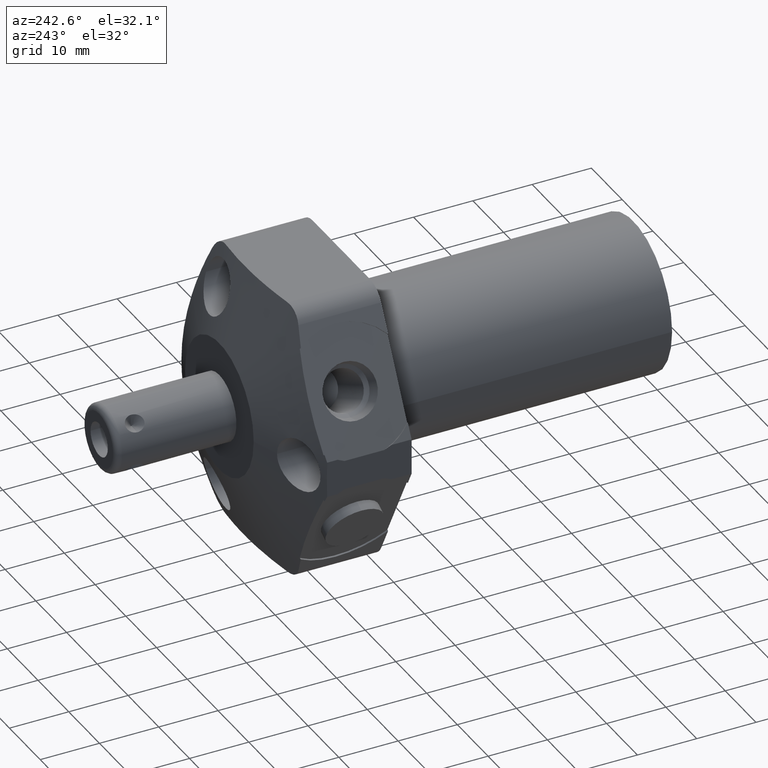
[diagram: clean part render]
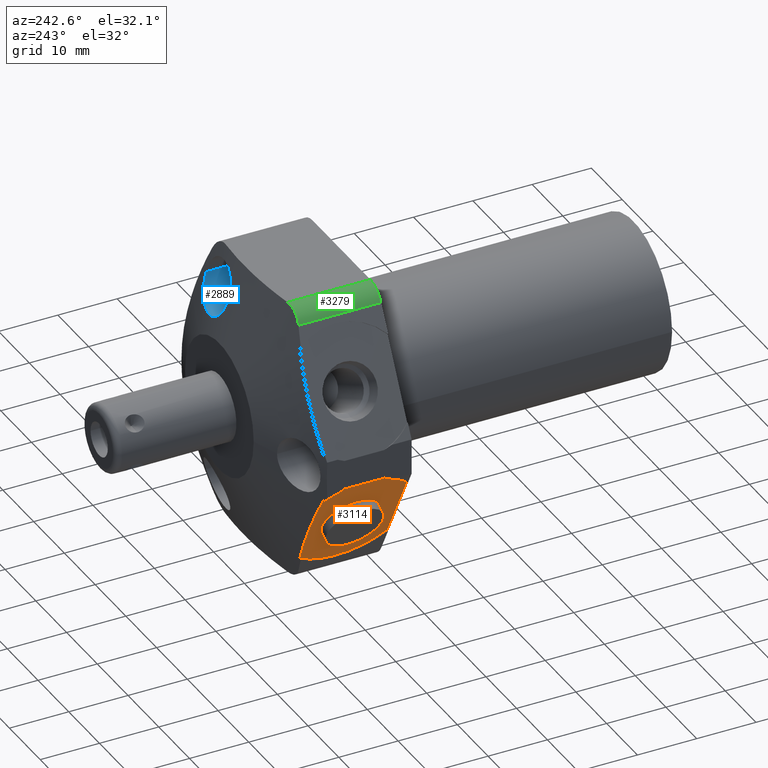
[diagram: same view with three faces highlighted in distinct colors, each labeled with its STEP entity id]
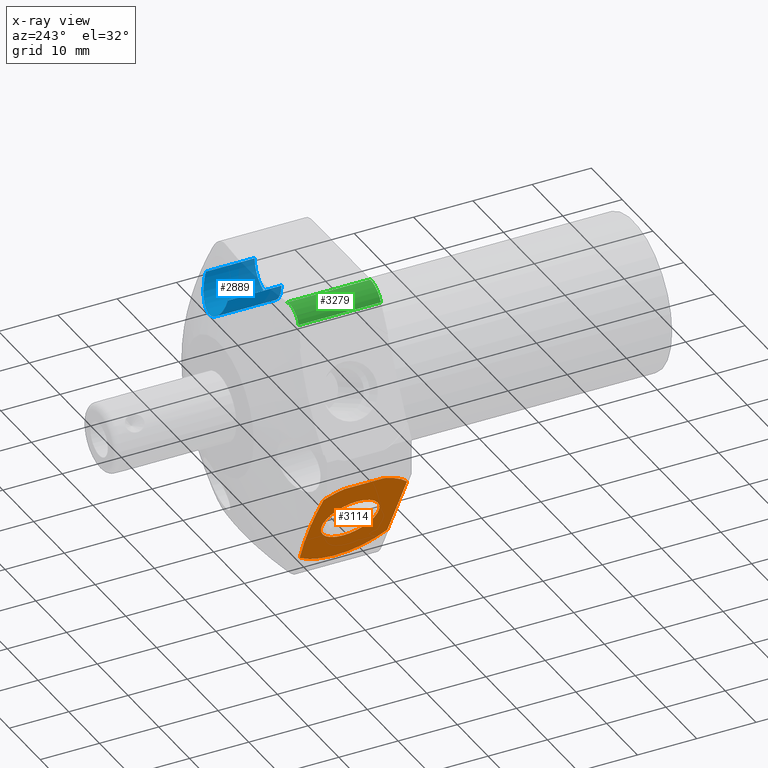
[diagram: x-ray of the same camera — body ghosted, the three highlighted faces saturated]
A machine part, auxiliary view with three faces highlighted in distinct colors.
The next image is the same camera in x-ray (body ghosted, the three faces saturated) — at least one of them is partly hidden behind the body in this view.
Their STEP definitions:

[orange] entity #3114 — the highlighted planar face has unit normal (0.8829, 0, 0.4695).
#486=DIRECTION('',(4.694715627859E-1,0.E0,-8.829475928589E-1));
#487=VECTOR('',#486,5.373537010201E-1);
#488=CARTESIAN_POINT('',(-9.587557209593E-1,0.E0,-2.054841052923E-1));
#489=LINE('',#488,#487);
#958=CARTESIAN_POINT('',(-1.016E0,1.804109471908E-1,-9.782327471084E-2));
#966=DIRECTION('',(0.E0,-1.E0,0.E0));
#967=VECTOR('',#966,2.651781056185E-1);
#968=CARTESIAN_POINT('',(-1.016E0,4.455890528092E-1,-9.782327471084E-2));
#969=LINE('',#968,#967);
#976=CARTESIAN_POINT('',(-1.016E0,4.455890528092E-1,-9.782327471084E-2));
#1049=CARTESIAN_POINT('',(-8.326195800660E-1,3.13E-1,-4.427116837071E-1));
#1050=DIRECTION('',(-8.829475928589E-1,0.E0,-4.694715627859E-1));
#1051=DIRECTION('',(3.680814457022E-1,6.207184763267E-1,-6.922605163350E-1));
#1052=AXIS2_PLACEMENT_3D('',#1049,#1050,#1051);
#1065=CARTESIAN_POINT('',(-9.844531764181E-1,5.690463714848E-1,
-1.571542207189E-1));
#1066=CARTESIAN_POINT('',(-9.642555672210E-1,5.735812521305E-1,
-1.951403988726E-1));
#1067=CARTESIAN_POINT('',(-9.238256986409E-1,5.810341395679E-1,
-2.711779227018E-1));
#1068=CARTESIAN_POINT('',(-8.631047754921E-1,5.868035187656E-1,
-3.853773698679E-1));
#1069=CARTESIAN_POINT('',(-8.021227609405E-1,5.868031219303E-1,
-5.000678585453E-1));
#1070=CARTESIAN_POINT('',(-7.413976984543E-1,5.810318216391E-1,
-6.142750906729E-1));
#1071=CARTESIAN_POINT('',(-7.009771709842E-1,5.735798102434E-1,
-6.902950464292E-1));
#1072=CARTESIAN_POINT('',(-6.807859837138E-1,5.690463714848E-1,
-7.282691466953E-1));
#1077=CARTESIAN_POINT('',(-8.326195800660E-1,3.13E-1,-4.427116837071E-1));
#1078=DIRECTION('',(8.829475928589E-1,0.E0,4.694715627859E-1));
#1079=DIRECTION('',(-3.680814457022E-1,6.207184763267E-1,6.922605163350E-1));
#1080=AXIS2_PLACEMENT_3D('',#1077,#1078,#1079);
#1085=CARTESIAN_POINT('',(-8.326195800660E-1,3.13E-1,-4.427116837071E-1));
#1086=DIRECTION('',(8.829475928589E-1,0.E0,4.694715627859E-1));
#1087=DIRECTION('',(-4.445585937795E-1,-3.214280068102E-1,8.360931127182E-1));
#1088=AXIS2_PLACEMENT_3D('',#1085,#1086,#1087);
#1093=CARTESIAN_POINT('',(-8.326195800660E-1,3.13E-1,-4.427116837071E-1));
#1094=DIRECTION('',(8.829475928589E-1,0.E0,4.694715627859E-1));
#1095=DIRECTION('',(4.694715627859E-1,0.E0,-8.829475928589E-1));
#1096=AXIS2_PLACEMENT_3D('',#1093,#1094,#1095);
#1101=CARTESIAN_POINT('',(-8.326195800660E-1,3.13E-1,-4.427116837071E-1));
#1102=DIRECTION('',(8.829475928589E-1,0.E0,4.694715627859E-1));
#1103=DIRECTION('',(-4.694715627859E-1,0.E0,8.829475928589E-1));
#1104=AXIS2_PLACEMENT_3D('',#1101,#1102,#1103);
#2116=CARTESIAN_POINT('',(-9.587557209593E-1,0.E0,-2.054841052923E-1));
#2117=CARTESIAN_POINT('',(-7.064834391726E-1,0.E0,-6.799392621219E-1));
#2118=VERTEX_POINT('',#2116);
#2119=VERTEX_POINT('',#2117);
#2130=VERTEX_POINT('',#976);
#2131=VERTEX_POINT('',#958);
#2132=VERTEX_POINT('',#1065);
#2133=VERTEX_POINT('',#1072);
#2222=CARTESIAN_POINT('',(-7.438894546994E-1,3.13E-1,-6.095887787574E-1));
#2223=VERTEX_POINT('',#2222);
#2224=CARTESIAN_POINT('',(-9.213497054325E-1,3.13E-1,-2.758345886568E-1));
#2225=VERTEX_POINT('',#2224);
#3095=CARTESIAN_POINT('',(-8.326195800660E-1,3.13E-1,-4.427116837071E-1));
#3096=DIRECTION('',(8.829475928589E-1,0.E0,4.694715627859E-1));
#3097=DIRECTION('',(4.694715627859E-1,0.E0,-8.829475928589E-1));
#3098=AXIS2_PLACEMENT_3D('',#3095,#3096,#3097);
#3099=PLANE('',#3098);
#3100=ORIENTED_EDGE('',*,*,#2661,.T.);
#3101=ORIENTED_EDGE('',*,*,#3074,.F.);
#3102=ORIENTED_EDGE('',*,*,#2522,.F.);
#3103=ORIENTED_EDGE('',*,*,#3089,.T.);
#3104=ORIENTED_EDGE('',*,*,#3006,.T.);
#3105=ORIENTED_EDGE('',*,*,#3062,.T.);
#3106=EDGE_LOOP('',(#3100,#3101,#3102,#3103,#3104,#3105));
#3107=FACE_OUTER_BOUND('',#3106,.F.);
#3109=ORIENTED_EDGE('',*,*,#3108,.F.);
#3111=ORIENTED_EDGE('',*,*,#3110,.F.);
#3112=EDGE_LOOP('',(#3109,#3111));
#3113=FACE_BOUND('',#3112,.F.);
#1053=CIRCLE('',#1052,4.125E-1);
#1073=B_SPLINE_CURVE_WITH_KNOTS('',3,(#1065,#1066,#1067,#1068,#1069,#1070,#1071,
#1072),.UNSPECIFIED.,.F.,.F.,(4,1,1,1,1,4),(0.E0,2.E-1,4.E-1,6.E-1,8.E-1,1.E0),
.UNSPECIFIED.);
#1081=CIRCLE('',#1080,4.125E-1);
#1089=CIRCLE('',#1088,4.125E-1);
#1097=CIRCLE('',#1096,1.89E-1);
#1105=CIRCLE('',#1104,1.89E-1);
#2522=EDGE_CURVE('',#2132,#2133,#1073,.T.);
#2661=EDGE_CURVE('',#2118,#2119,#489,.T.);
#3006=EDGE_CURVE('',#2130,#2131,#969,.T.);
#3062=EDGE_CURVE('',#2131,#2118,#1089,.T.);
#3074=EDGE_CURVE('',#2133,#2119,#1053,.T.);
#3089=EDGE_CURVE('',#2132,#2130,#1081,.T.);
#3108=EDGE_CURVE('',#2223,#2225,#1097,.T.);
#3110=EDGE_CURVE('',#2225,#2223,#1105,.T.);
#3114=ADVANCED_FACE('',(#3107,#3113),#3099,.F.);

[blue] entity #2889 — the highlighted cylindrical surface (edge-blend (fillet) strip) has radius 4.3561 mm, axis along (0, -1, 0).
#651=CARTESIAN_POINT('',(2.19E-1,3.13E-1,6.87E-1));
#652=DIRECTION('',(0.E0,-1.E0,0.E0));
#653=DIRECTION('',(-1.E0,0.E0,0.E0));
#654=AXIS2_PLACEMENT_3D('',#651,#652,#653);
#675=DIRECTION('',(0.E0,-1.E0,0.E0));
#676=VECTOR('',#675,3.232042388452E-1);
#677=CARTESIAN_POINT('',(3.905E-1,6.362042388452E-1,6.87E-1));
#678=LINE('',#677,#676);
#682=CARTESIAN_POINT('',(3.905E-1,6.362042388452E-1,6.87E-1));
#698=CARTESIAN_POINT('',(4.75E-2,6.692119194515E-1,6.87E-1));
#703=CARTESIAN_POINT('',(4.75E-2,6.692119194515E-1,6.87E-1));
#704=CARTESIAN_POINT('',(4.75E-2,6.735208962601E-1,6.737066720774E-1));
#705=CARTESIAN_POINT('',(5.057434829405E-2,6.820070819903E-1,
6.473228852712E-1));
#706=CARTESIAN_POINT('',(6.415608783383E-2,6.937529413705E-1,
6.098626416133E-1));
#707=CARTESIAN_POINT('',(8.533674333356E-2,7.034438386310E-1,
5.772483062985E-1));
#708=CARTESIAN_POINT('',(1.130332137605E-1,7.105093380273E-1,
5.503972740693E-1));
#709=CARTESIAN_POINT('',(1.447767774134E-1,7.142900472828E-1,
5.309259580782E-1));
#710=CARTESIAN_POINT('',(1.797748400791E-1,7.147253528828E-1,
5.187046204272E-1));
#711=CARTESIAN_POINT('',(2.162017629851E-1,7.118397014810E-1,
5.141969534109E-1));
#712=CARTESIAN_POINT('',(2.536297117762E-1,7.057567735426E-1,
5.176286971865E-1));
#713=CARTESIAN_POINT('',(2.897472198247E-1,6.969743053388E-1,
5.292148303537E-1));
#714=CARTESIAN_POINT('',(3.233425134269E-1,6.859603318308E-1,
5.490079450260E-1));
#715=CARTESIAN_POINT('',(3.520564625116E-1,6.735123038797E-1,
5.763972536785E-1));
#716=CARTESIAN_POINT('',(3.738527849218E-1,6.605678043556E-1,
6.097606101560E-1));
#717=CARTESIAN_POINT('',(3.874862311906E-1,6.477788146624E-1,
6.475559083709E-1));
#718=CARTESIAN_POINT('',(3.905E-1,6.399166921064E-1,6.738574308526E-1));
#719=CARTESIAN_POINT('',(3.905E-1,6.362042388452E-1,6.87E-1));
#820=DIRECTION('',(0.E0,-1.E0,0.E0));
#821=VECTOR('',#820,3.562119194515E-1);
#822=CARTESIAN_POINT('',(4.75E-2,6.692119194515E-1,6.87E-1));
#823=LINE('',#822,#821);
#2086=CARTESIAN_POINT('',(3.905E-1,3.13E-1,6.87E-1));
#2087=CARTESIAN_POINT('',(4.75E-2,3.13E-1,6.87E-1));
#2088=VERTEX_POINT('',#2086);
#2089=VERTEX_POINT('',#2087);
#2114=VERTEX_POINT('',#682);
#2115=VERTEX_POINT('',#698);
#2878=CARTESIAN_POINT('',(2.19E-1,7.5E-1,6.87E-1));
#2879=DIRECTION('',(0.E0,-1.E0,0.E0));
#2880=DIRECTION('',(1.E0,0.E0,0.E0));
#2881=AXIS2_PLACEMENT_3D('',#2878,#2879,#2880);
#2882=CYLINDRICAL_SURFACE('',#2881,1.715E-1);
#2883=ORIENTED_EDGE('',*,*,#2873,.T.);
#2884=ORIENTED_EDGE('',*,*,#2834,.T.);
#2885=ORIENTED_EDGE('',*,*,#2814,.F.);
#2886=ORIENTED_EDGE('',*,*,#2831,.F.);
#2887=EDGE_LOOP('',(#2883,#2884,#2885,#2886));
#2888=FACE_OUTER_BOUND('',#2887,.F.);
#655=CIRCLE('',#654,1.715E-1);
#720=B_SPLINE_CURVE_WITH_KNOTS('',3,(#703,#704,#705,#706,#707,#708,#709,#710,
#711,#712,#713,#714,#715,#716,#717,#718,#719),.UNSPECIFIED.,.F.,.F.,(4,1,1,1,1,
1,1,1,1,1,1,1,1,1,4),(0.E0,7.142857142857E-2,1.428571428571E-1,
2.142857142857E-1,2.857142857143E-1,3.571428571429E-1,4.285714285714E-1,5.E-1,
5.714285714286E-1,6.428571428571E-1,7.142857142857E-1,7.857142857143E-1,
8.571428571429E-1,9.285714285714E-1,1.E0),.UNSPECIFIED.);
#2814=EDGE_CURVE('',#2089,#2088,#655,.T.);
#2831=EDGE_CURVE('',#2115,#2089,#823,.T.);
#2834=EDGE_CURVE('',#2114,#2088,#678,.T.);
#2873=EDGE_CURVE('',#2115,#2114,#720,.T.);
#2889=ADVANCED_FACE('',(#2888),#2882,.F.);

[green] entity #3279 — the highlighted cylindrical surface (edge-blend (fillet) strip) has radius 3.9624 mm, axis along (0, -1, 0).
#799=CARTESIAN_POINT('',(-4.871274095557E-1,5.496859134741E-1,9.375E-1));
#800=CARTESIAN_POINT('',(-4.984399655190E-1,5.479911524756E-1,9.375E-1));
#801=CARTESIAN_POINT('',(-5.210259060925E-1,5.452250688082E-1,
9.350320150446E-1));
#802=CARTESIAN_POINT('',(-5.532515648873E-1,5.430546718760E-1,
9.241389809551E-1));
#803=CARTESIAN_POINT('',(-5.822446058616E-1,5.429120920163E-1,
9.066729507310E-1));
#804=CARTESIAN_POINT('',(-6.068335177847E-1,5.447812043005E-1,
8.834217822662E-1));
#805=CARTESIAN_POINT('',(-6.195733948962E-1,5.473466837296E-1,
8.646938271789E-1));
#806=CARTESIAN_POINT('',(-6.248672340417E-1,5.489430794105E-1,
8.547375637946E-1));
#911=CARTESIAN_POINT('',(-6.248672340417E-1,5.489430794105E-1,
8.547375637946E-1));
#1228=CARTESIAN_POINT('',(-4.871274095557E-1,5.496859134741E-1,9.375E-1));
#1233=DIRECTION('',(0.E0,-1.E0,0.E0));
#1234=VECTOR('',#1233,5.496859134741E-1);
#1235=CARTESIAN_POINT('',(-4.871274095557E-1,5.496859134741E-1,9.375E-1));
#1236=LINE('',#1235,#1234);
#1240=CARTESIAN_POINT('',(-4.871274095557E-1,0.E0,7.815E-1));
#1241=DIRECTION('',(0.E0,-1.E0,0.E0));
#1242=DIRECTION('',(0.E0,0.E0,1.E0));
#1243=AXIS2_PLACEMENT_3D('',#1240,#1241,#1242);
#1248=DIRECTION('',(0.E0,-1.E0,0.E0));
#1249=VECTOR('',#1248,5.489430794105E-1);
#1250=CARTESIAN_POINT('',(-6.248672340417E-1,5.489430794105E-1,
8.547375637946E-1));
#1251=LINE('',#1250,#1249);
#2099=VERTEX_POINT('',#1228);
#2155=VERTEX_POINT('',#911);
#2242=CARTESIAN_POINT('',(-4.871274095557E-1,0.E0,9.375E-1));
#2243=CARTESIAN_POINT('',(-6.248672340417E-1,0.E0,8.547375637946E-1));
#2244=VERTEX_POINT('',#2242);
#2245=VERTEX_POINT('',#2243);
#3268=CARTESIAN_POINT('',(-4.871274095557E-1,7.556228986350E-1,7.815E-1));
#3269=DIRECTION('',(0.E0,-1.E0,0.E0));
#3270=DIRECTION('',(0.E0,0.E0,1.E0));
#3271=AXIS2_PLACEMENT_3D('',#3268,#3269,#3270);
#3272=CYLINDRICAL_SURFACE('',#3271,1.56E-1);
#3273=ORIENTED_EDGE('',*,*,#2864,.F.);
#3274=ORIENTED_EDGE('',*,*,#3263,.T.);
#3275=ORIENTED_EDGE('',*,*,#2643,.T.);
#3276=ORIENTED_EDGE('',*,*,#2974,.F.);
#3277=EDGE_LOOP('',(#3273,#3274,#3275,#3276));
#3278=FACE_OUTER_BOUND('',#3277,.F.);
#807=B_SPLINE_CURVE_WITH_KNOTS('',3,(#799,#800,#801,#802,#803,#804,#805,#806),
.UNSPECIFIED.,.F.,.F.,(4,1,1,1,1,4),(0.E0,2.E-1,4.E-1,6.E-1,8.E-1,1.E0),
.UNSPECIFIED.);
#1244=CIRCLE('',#1243,1.56E-1);
#2643=EDGE_CURVE('',#2244,#2245,#1244,.T.);
#2864=EDGE_CURVE('',#2099,#2155,#807,.T.);
#2974=EDGE_CURVE('',#2155,#2245,#1251,.T.);
#3263=EDGE_CURVE('',#2099,#2244,#1236,.T.);
#3279=ADVANCED_FACE('',(#3278),#3272,.T.);